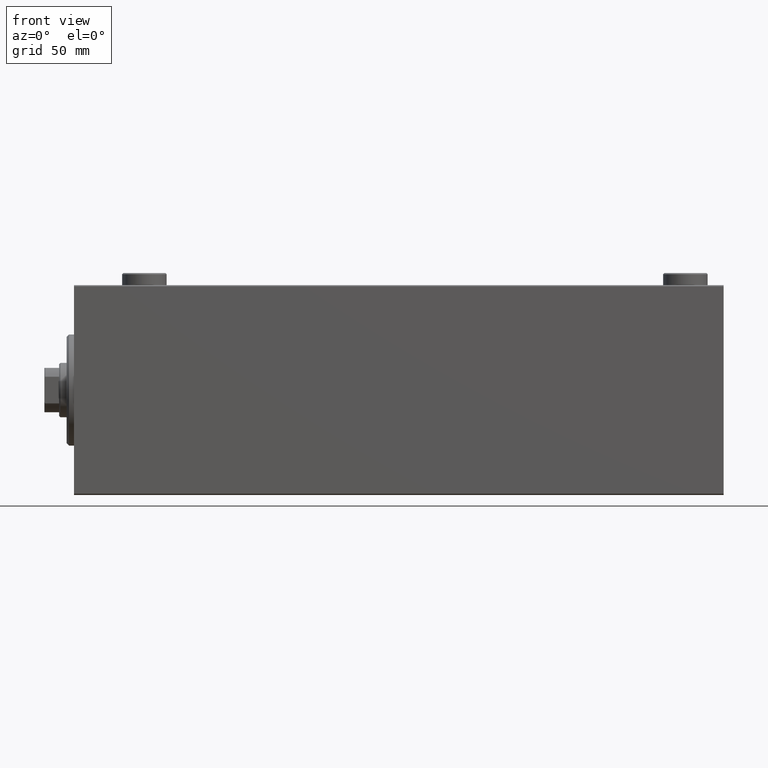
[diagram: clean part render]
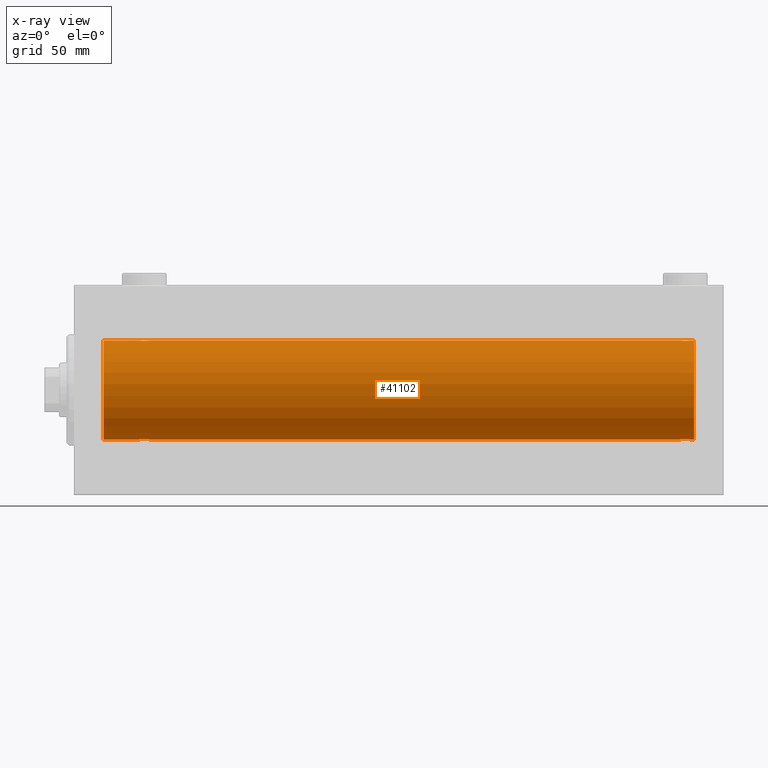
[diagram: x-ray — body ghosted, one internal face saturated and labeled with its STEP entity id]
A machine part, front view, then the same camera in x-ray: the body is ghosted and one INTERNAL B-rep face — a face not visible from any outside direction — is saturated and labeled: STEP entity #41102.
In plain terms, the highlighted cylindrical surface (partial cylindrical patch) has radius 20 mm, axis along (-1, -0, -0).
Its self-contained STEP definition (entity closure, byte-faithful):
#3 = CARTESIAN_POINT ( 'NONE',  ( 248.1434852873303782, -1.898187925611334093, 19.90978194174746463 ) ) ;
#219 = CARTESIAN_POINT ( 'NONE',  ( 249.4467948419180061, -0.5270924491156545599, 19.99450181871975829 ) ) ;
#1143 = CARTESIAN_POINT ( 'NONE',  ( 29.14630673924643744, -1.897222639860594029, -19.90987429971496780 ) ) ;
#1262 = EDGE_CURVE ( 'NONE', #20983, #10361, #3202, .T. ) ;
#1441 = CARTESIAN_POINT ( 'NONE',  ( 29.82096906847290541, -1.507328959728497564, 19.94333197382386302 ) ) ;
#1475 = EDGE_CURVE ( 'NONE', #38331, #9956, #17866, .T. ) ;
#1754 = EDGE_CURVE ( 'NONE', #14636, #9956, #2812, .T. ) ;
#2354 = CARTESIAN_POINT ( 'NONE',  ( 29.14348528733041377, -1.898187925611342086, 19.90978194174746818 ) ) ;
#2456 = CARTESIAN_POINT ( 'NONE',  ( 251.0000000000000000, 0.000000000000000000, 0.000000000000000000 ) ) ;
#2812 = LINE ( 'NONE', #19427, #37708 ) ;
#3033 = CARTESIAN_POINT ( 'NONE',  ( 246.6142092332927120, -1.797933656607944908, -19.91908554465557302 ) ) ;
#3125 = VERTEX_POINT ( 'NONE', #9910 ) ;
#3202 = LINE ( 'NONE', #31083, #28158 ) ;
#3241 = CARTESIAN_POINT ( 'NONE',  ( 246.1769333108052820, -1.505486175075775979, 19.94347168299867690 ) ) ;
#3684 = CARTESIAN_POINT ( 'NONE',  ( 247.3663480385754667, -1.999898234284060772, 19.89975896996866211 ) ) ;
#4162 = CARTESIAN_POINT ( 'NONE',  ( 26.90225308445269903, -1.230936344679278260, -19.96293863536309132 ) ) ;
#4613 = CARTESIAN_POINT ( 'NONE',  ( 27.28194580527848601, -1.591668229360197140, -19.93669678979812332 ) ) ;
#6500 = CARTESIAN_POINT ( 'NONE',  ( 248.3882943720709022, -1.796691196322336870, -19.91919800395357143 ) ) ;
#6502 = CARTESIAN_POINT ( 'NONE',  ( 30.50000000000000000, 2.449293582768389958E-15, -20.00000000000000000 ) ) ;
#6508 = VERTEX_POINT ( 'NONE', #11505 ) ;
#6727 = CARTESIAN_POINT ( 'NONE',  ( 249.4999999999999716, -0.2610801504281894947, -19.99999999999999645 ) ) ;
#7017 = CARTESIAN_POINT ( 'NONE',  ( 245.5000000000000000, -2.194759453252805910E-14, -20.00000000000000000 ) ) ;
#7158 = CARTESIAN_POINT ( 'NONE',  ( 249.2468697630306735, -1.008108445278671050, 19.97602680192585822 ) ) ;
#7200 = ORIENTED_EDGE ( 'NONE', *, *, #33176, .T. ) ;
#7282 = FACE_OUTER_BOUND ( 'NONE', #36131, .T. ) ;
#7379 = CARTESIAN_POINT ( 'NONE',  ( 248.5006721913923400, -1.736582545981374404, 19.92459705242980306 ) ) ;
#7627 = CARTESIAN_POINT ( 'NONE',  ( 28.76358144091416236, -1.986835489085814199, -19.90108393514801222 ) ) ;
#7767 = VERTEX_POINT ( 'NONE', #33770 ) ;
#7849 = CARTESIAN_POINT ( 'NONE',  ( 29.50306556339602437, -1.735203193119894349, -19.92471783160910803 ) ) ;
#8833 = CARTESIAN_POINT ( 'NONE',  ( 26.50000000000001421, -0.2610801504281920482, 20.00000000000000000 ) ) ;
#8876 = CARTESIAN_POINT ( 'NONE',  ( 30.50000000000000000, 2.449293582768389958E-15, -20.00000000000000000 ) ) ;
#9063 = CARTESIAN_POINT ( 'NONE',  ( 26.50000000000000355, -1.552675476701256486E-23, 20.00000000000000000 ) ) ;
#9275 = CARTESIAN_POINT ( 'NONE',  ( 246.8565147126695933, -1.898187925611367399, -19.90978194174746463 ) ) ;
#9288 = CARTESIAN_POINT ( 'NONE',  ( 30.24686976303071617, -1.008108445278694365, 19.97602680192586533 ) ) ;
#9498 = CARTESIAN_POINT ( 'NONE',  ( 247.6336519614245333, -1.999898234284084308, -19.89975896996866211 ) ) ;
#9716 = DIRECTION ( 'NONE',  ( -1.000000000000000000, -0.000000000000000000, -0.000000000000000000 ) ) ;
#9910 = CARTESIAN_POINT ( 'NONE',  ( 26.50000000000000355, -3.809869420541414000E-15, -20.00000000000000000 ) ) ;
#9952 = CARTESIAN_POINT ( 'NONE',  ( 248.7202894579446593, -1.589957321664215328, -19.93683391378736403 ) ) ;
#9956 = VERTEX_POINT ( 'NONE', #32313 ) ;
#10053 = DIRECTION ( 'NONE',  ( 0.000000000000000000, 0.000000000000000000, 1.000000000000000000 ) ) ;
#10161 = CARTESIAN_POINT ( 'NONE',  ( 245.9005847511597267, -1.228758402364239499, 19.96307487248084556 ) ) ;
#10188 = CARTESIAN_POINT ( 'NONE',  ( 30.09941524884030173, -1.228758402364235502, -19.96307487248084911 ) ) ;
#10361 = VERTEX_POINT ( 'NONE', #13576 ) ;
#10418 = CARTESIAN_POINT ( 'NONE',  ( 30.49999999999999645, -0.2610801504281900498, -19.99999999999999645 ) ) ;
#10888 = VECTOR ( 'NONE', #21862, 1000.000000000000000 ) ;
#11505 = CARTESIAN_POINT ( 'NONE',  ( 30.50000000000000000, -1.291560016220422276E-14, 20.00000000000000000 ) ) ;
#11710 = VERTEX_POINT ( 'NONE', #8876 ) ;
#12509 = CARTESIAN_POINT ( 'NONE',  ( 28.76077256031567586, -1.987205673487811186, 19.90104673894211018 ) ) ;
#12605 = DIRECTION ( 'NONE',  ( -1.000000000000000000, 0.000000000000000000, 0.000000000000000000 ) ) ;
#12735 = CARTESIAN_POINT ( 'NONE',  ( 30.09774691554730808, -1.230936344679284034, 19.96293863536309487 ) ) ;
#12917 = CARTESIAN_POINT ( 'NONE',  ( 251.0000000000000000, 2.449293598294706513E-15, -20.00000000000000000 ) ) ;
#12946 = CARTESIAN_POINT ( 'NONE',  ( 245.5532051580820223, -0.5270924491157048530, -19.99450181871975474 ) ) ;
#12991 = EDGE_CURVE ( 'NONE', #14636, #6508, #16779, .T. ) ;
#13406 = CARTESIAN_POINT ( 'NONE',  ( 248.5030655633960350, -1.735203193119904341, -19.92471783160911158 ) ) ;
#13576 = CARTESIAN_POINT ( 'NONE',  ( 249.5000000000000000, 6.344962748519499734E-15, 20.00000000000000000 ) ) ;
#13636 = CARTESIAN_POINT ( 'NONE',  ( 245.5000000000000000, -2.194759453252805910E-14, -20.00000000000000000 ) ) ;
#13841 = CARTESIAN_POINT ( 'NONE',  ( 249.5000000000000568, -0.2644051013331001898, 20.00000000000000355 ) ) ;
#14038 = ORIENTED_EDGE ( 'NONE', *, *, #36027, .T. ) ;
#14636 = VERTEX_POINT ( 'NONE', #33551 ) ;
#14757 = CARTESIAN_POINT ( 'NONE',  ( 27.85651471266959334, -1.898187925611338533, -19.90978194174746818 ) ) ;
#14772 = VERTEX_POINT ( 'NONE', #45069 ) ;
#14791 = ORIENTED_EDGE ( 'NONE', *, *, #25543, .F. ) ;
#14983 = ORIENTED_EDGE ( 'NONE', *, *, #28711, .F. ) ;
#15206 = CARTESIAN_POINT ( 'NONE',  ( 28.36941128289166159, -2.000100592782553921, -19.89973863218036598 ) ) ;
#16144 = CARTESIAN_POINT ( 'NONE',  ( 12.00000000000001066, 2.449293598294706513E-15, -20.00000000000000000 ) ) ;
#16231 = EDGE_CURVE ( 'NONE', #11710, #3125, #20646, .T. ) ;
#16414 = CARTESIAN_POINT ( 'NONE',  ( 249.5000000000000000, 2.449293582762473501E-15, -20.00000000000000000 ) ) ;
#16428 = CARTESIAN_POINT ( 'NONE',  ( 29.50067219139244301, -1.736582545981379511, 19.92459705242981371 ) ) ;
#16516 = ORIENTED_EDGE ( 'NONE', *, *, #12991, .T. ) ;
#16779 = B_SPLINE_CURVE_WITH_KNOTS ( 'NONE', 3,
 ( #9063, #8833, #43616, #33706, #30025, #26579, #22663, #26802, #19209, #33247, #22889, #44311, #33933, #40839, #12509, #40614, #2354, #23119, #16428, #29794, #1441, #12735, #9288, #23349, #36924, #44532 ),
 .UNSPECIFIED., .F., .F.,
 ( 4, 2, 2, 2, 2, 2, 2, 2, 2, 2, 2, 2, 4 ),
 ( 0.006256819553329746875, 0.007038738568778710007, 0.007820657584227673140, 0.008211617091952151670, 0.008602576599676628466, 0.008993536107401105262, 0.009384495615125583792, 0.009775455122850062323, 0.01016641463057453912, 0.01055737413829901591, 0.01094833364602349271, 0.01173025266147244804, 0.01251217167692140336 ),
 .UNSPECIFIED. ) ;
#16831 = LINE ( 'NONE', #17057, #44955 ) ;
#16833 = CARTESIAN_POINT ( 'NONE',  ( 251.0000000000000000, 0.000000000000000000, 20.00000000000000000 ) ) ;
#16954 = B_SPLINE_CURVE_WITH_KNOTS ( 'NONE', 3,
 ( #16414, #6727, #38285, #19878, #27695, #20568, #9952, #13406, #6500, #20336, #38053, #34602, #9498, #20797, #27012, #45433, #9275, #3033, #33915, #30692, #30457, #17098, #44515, #12946, #31148, #13636 ),
 .UNSPECIFIED., .F., .F.,
 ( 4, 2, 2, 2, 2, 2, 2, 2, 2, 2, 2, 2, 4 ),
 ( 0.006256819553329811927, 0.007038738568778726487, 0.007820657584227641915, 0.008211617091952127384, 0.008602576599676614588, 0.008993536107401101792, 0.009384495615125588996, 0.009775455122850074466, 0.01016641463057456167, 0.01055737413829904714, 0.01094833364602353434, 0.01173025266147256600, 0.01251217167692159765 ),
 .UNSPECIFIED. ) ;
#17057 = CARTESIAN_POINT ( 'NONE',  ( 251.0000000000000000, 2.449293598294706513E-15, -20.00000000000000000 ) ) ;
#17098 = CARTESIAN_POINT ( 'NONE',  ( 245.9022530844527239, -1.230936344679302907, -19.96293863536308422 ) ) ;
#17219 = DIRECTION ( 'NONE',  ( 0.000000000000000000, 0.000000000000000000, 1.000000000000000000 ) ) ;
#17299 = CARTESIAN_POINT ( 'NONE',  ( 248.7180541947215318, -1.591668229360197806, 19.93669678979812687 ) ) ;
#17655 = CYLINDRICAL_SURFACE ( 'NONE', #32442, 20.00000000000000000 ) ;
#17866 = CIRCLE ( 'NONE', #38449, 20.00000000000000000 ) ;
#18035 = ORIENTED_EDGE ( 'NONE', *, *, #1262, .F. ) ;
#19209 = CARTESIAN_POINT ( 'NONE',  ( 27.61170562792909422, -1.796691196322318218, 19.91919800395357498 ) ) ;
#19427 = CARTESIAN_POINT ( 'NONE',  ( 251.0000000000000000, 0.000000000000000000, 20.00000000000000000 ) ) ;
#19878 = CARTESIAN_POINT ( 'NONE',  ( 249.2482591346001755, -1.005710574260850532, -19.97614991974274190 ) ) ;
#20336 = CARTESIAN_POINT ( 'NONE',  ( 248.1463067392464552, -1.897222639860616233, -19.90987429971496070 ) ) ;
#20568 = CARTESIAN_POINT ( 'NONE',  ( 248.8230666891946612, -1.505486175075778199, -19.94347168299867690 ) ) ;
#20646 = B_SPLINE_CURVE_WITH_KNOTS ( 'NONE', 3,
 ( #6502, #10418, #41744, #38055, #10188, #24251, #38288, #7849, #36165, #1143, #39855, #7627, #29036, #15206, #32489, #22137, #14757, #23220, #29263, #4613, #40713, #4162, #21906, #43317, #32951, #32720 ),
 .UNSPECIFIED., .F., .F.,
 ( 4, 2, 2, 2, 2, 2, 2, 2, 2, 2, 2, 2, 4 ),
 ( 0.006256819553329842284, 0.007038738568778818427, 0.007820657584227792836, 0.008211617091952278305, 0.008602576599676762040, 0.008993536107401245774, 0.009384495615125729509, 0.009775455122850213244, 0.01016641463057469871, 0.01055737413829918071, 0.01094833364602366618, 0.01173025266147263365, 0.01251217167692159939 ),
 .UNSPECIFIED. ) ;
#20797 = CARTESIAN_POINT ( 'NONE',  ( 247.3694112828916047, -2.000100592782575237, -19.89973863218036243 ) ) ;
#20983 = VERTEX_POINT ( 'NONE', #16833 ) ;
#20998 = CARTESIAN_POINT ( 'NONE',  ( 247.6305887171083668, -2.000100592782551701, 19.89973863218036598 ) ) ;
#21862 = DIRECTION ( 'NONE',  ( -1.000000000000000000, -0.000000000000000000, -0.000000000000000000 ) ) ;
#21906 = CARTESIAN_POINT ( 'NONE',  ( 26.75313023696928738, -1.008108445278687704, -19.97602680192586533 ) ) ;
#21949 = ORIENTED_EDGE ( 'NONE', *, *, #1754, .F. ) ;
#22137 = CARTESIAN_POINT ( 'NONE',  ( 27.98351467081095123, -1.936551476643005198, -19.90603968831098314 ) ) ;
#22663 = CARTESIAN_POINT ( 'NONE',  ( 27.27971054205536205, -1.589957321664209333, 19.93683391378736047 ) ) ;
#22889 = CARTESIAN_POINT ( 'NONE',  ( 27.98076487864722495, -1.935816449315125309, 19.90611141657401717 ) ) ;
#23119 = CARTESIAN_POINT ( 'NONE',  ( 29.38579076670728085, -1.797933656607921593, 19.91908554465558367 ) ) ;
#23220 = CARTESIAN_POINT ( 'NONE',  ( 27.61420923329272981, -1.797933656607917596, -19.91908554465558367 ) ) ;
#23349 = CARTESIAN_POINT ( 'NONE',  ( 30.44679484191797769, -0.5270924491156789848, 19.99450181871975829 ) ) ;
#24226 = CARTESIAN_POINT ( 'NONE',  ( 247.2364185590857915, -1.986835489085816198, 19.90108393514801222 ) ) ;
#24251 = CARTESIAN_POINT ( 'NONE',  ( 29.82306668919470383, -1.505486175075772870, -19.94347168299867334 ) ) ;
#24451 = CARTESIAN_POINT ( 'NONE',  ( 246.6117056279290694, -1.796691196322314443, 19.91919800395357143 ) ) ;
#24672 = CARTESIAN_POINT ( 'NONE',  ( 246.2797105420554260, -1.589957321664211998, 19.93683391378736403 ) ) ;
#24895 = CARTESIAN_POINT ( 'NONE',  ( 248.8209690684728628, -1.507328959728491347, 19.94333197382385592 ) ) ;
#25543 = EDGE_CURVE ( 'NONE', #7767, #6508, #38505, .T. ) ;
#25550 = VECTOR ( 'NONE', #9716, 1000.000000000000000 ) ;
#26224 = DIRECTION ( 'NONE',  ( 0.000000000000000000, 0.000000000000000000, 1.000000000000000000 ) ) ;
#26579 = CARTESIAN_POINT ( 'NONE',  ( 27.17693331080529617, -1.505486175075771760, 19.94347168299866979 ) ) ;
#26802 = CARTESIAN_POINT ( 'NONE',  ( 27.49693443660397563, -1.735203193119895015, 19.92471783160911158 ) ) ;
#27012 = CARTESIAN_POINT ( 'NONE',  ( 247.2392274396843277, -1.987205673487832502, -19.90104673894210308 ) ) ;
#27153 = EDGE_CURVE ( 'NONE', #3125, #38331, #28100, .T. ) ;
#27342 = DIRECTION ( 'NONE',  ( -1.000000000000000000, -0.000000000000000000, -0.000000000000000000 ) ) ;
#27695 = CARTESIAN_POINT ( 'NONE',  ( 249.0994152488403870, -1.228758402364237279, -19.96307487248085266 ) ) ;
#28100 = LINE ( 'NONE', #42154, #10888 ) ;
#28120 = CARTESIAN_POINT ( 'NONE',  ( 249.0977469155472477, -1.230936344679278704, 19.96293863536309132 ) ) ;
#28158 = VECTOR ( 'NONE', #38454, 1000.000000000000000 ) ;
#28339 = CARTESIAN_POINT ( 'NONE',  ( 246.8536932607535732, -1.897222639860593363, 19.90987429971496780 ) ) ;
#28458 = VERTEX_POINT ( 'NONE', #12917 ) ;
#28711 = EDGE_CURVE ( 'NONE', #28458, #20983, #41100, .T. ) ;
#29036 = CARTESIAN_POINT ( 'NONE',  ( 28.63365196142448355, -1.999898234284062992, -19.89975896996866211 ) ) ;
#29263 = CARTESIAN_POINT ( 'NONE',  ( 27.49932780860757475, -1.736582545981376180, -19.92459705242981371 ) ) ;
#29730 = ORIENTED_EDGE ( 'NONE', *, *, #1475, .T. ) ;
#29794 = CARTESIAN_POINT ( 'NONE',  ( 29.71805419472150689, -1.591668229360200915, 19.93669678979812687 ) ) ;
#30025 = CARTESIAN_POINT ( 'NONE',  ( 26.90058475115969827, -1.228758402364235058, 19.96307487248084911 ) ) ;
#30092 = VERTEX_POINT ( 'NONE', #7017 ) ;
#30268 = EDGE_CURVE ( 'NONE', #14772, #30092, #16954, .T. ) ;
#30457 = CARTESIAN_POINT ( 'NONE',  ( 246.1790309315271088, -1.507328959728516438, -19.94333197382385592 ) ) ;
#30692 = CARTESIAN_POINT ( 'NONE',  ( 246.2819458052784967, -1.591668229360221565, -19.93669678979811977 ) ) ;
#30874 = ORIENTED_EDGE ( 'NONE', *, *, #39266, .T. ) ;
#31083 = CARTESIAN_POINT ( 'NONE',  ( 251.0000000000000000, 0.000000000000000000, 20.00000000000000000 ) ) ;
#31112 = DIRECTION ( 'NONE',  ( -1.000000000000000000, -0.000000000000000000, -0.000000000000000000 ) ) ;
#31148 = CARTESIAN_POINT ( 'NONE',  ( 245.5000000000000284, -0.2644051013331287225, -20.00000000000000000 ) ) ;
#31701 = CARTESIAN_POINT ( 'NONE',  ( 251.0000000000000000, 0.000000000000000000, 0.000000000000000000 ) ) ;
#31795 = CARTESIAN_POINT ( 'NONE',  ( 247.7607725603156439, -1.987205673487804747, 19.90104673894209952 ) ) ;
#32015 = CARTESIAN_POINT ( 'NONE',  ( 246.9807648786472782, -1.935816449315131527, 19.90611141657401717 ) ) ;
#32259 = AXIS2_PLACEMENT_3D ( 'NONE', #2456, #41398, #17219 ) ;
#32313 = CARTESIAN_POINT ( 'NONE',  ( 12.00000000000001066, 0.000000000000000000, 20.00000000000000000 ) ) ;
#32442 = AXIS2_PLACEMENT_3D ( 'NONE', #31701, #35153, #10053 ) ;
#32489 = CARTESIAN_POINT ( 'NONE',  ( 28.23922743968432059, -1.987205673487808966, -19.90104673894211018 ) ) ;
#32720 = CARTESIAN_POINT ( 'NONE',  ( 26.50000000000000355, -3.809869420541414000E-15, -20.00000000000000000 ) ) ;
#32951 = CARTESIAN_POINT ( 'NONE',  ( 26.50000000000001066, -0.2644051013331030209, -20.00000000000000355 ) ) ;
#33176 = EDGE_CURVE ( 'NONE', #28458, #14772, #37923, .T. ) ;
#33247 = CARTESIAN_POINT ( 'NONE',  ( 27.85369326075355190, -1.897222639860595139, 19.90987429971497136 ) ) ;
#33464 = DIRECTION ( 'NONE',  ( -1.000000000000000000, -0.000000000000000000, -0.000000000000000000 ) ) ;
#33551 = CARTESIAN_POINT ( 'NONE',  ( 26.50000000000000355, -1.552675476701256486E-23, 20.00000000000000000 ) ) ;
#33706 = CARTESIAN_POINT ( 'NONE',  ( 26.75174086539980678, -1.005710574260839874, 19.97614991974273835 ) ) ;
#33770 = CARTESIAN_POINT ( 'NONE',  ( 245.5000000000000000, -1.553188236289650144E-23, 20.00000000000000000 ) ) ;
#33915 = CARTESIAN_POINT ( 'NONE',  ( 246.4993278086076316, -1.736582545981399939, -19.92459705242980306 ) ) ;
#33933 = CARTESIAN_POINT ( 'NONE',  ( 28.36634803857550580, -1.999898234284063436, 19.89975896996865856 ) ) ;
#34240 = CARTESIAN_POINT ( 'NONE',  ( 251.0000000000000000, 2.449293598294706513E-15, -20.00000000000000000 ) ) ;
#34602 = CARTESIAN_POINT ( 'NONE',  ( 247.7635814409141517, -1.986835489085835738, -19.90108393514801577 ) ) ;
#34798 = CARTESIAN_POINT ( 'NONE',  ( 245.5000000000000000, -1.553188236289650144E-23, 20.00000000000000000 ) ) ;
#35027 = CARTESIAN_POINT ( 'NONE',  ( 245.7517408653997393, -1.005710574260841650, 19.97614991974273835 ) ) ;
#35153 = DIRECTION ( 'NONE',  ( -1.000000000000000000, -0.000000000000000000, -0.000000000000000000 ) ) ;
#36027 = EDGE_CURVE ( 'NONE', #7767, #10361, #37762, .T. ) ;
#36131 = EDGE_LOOP ( 'NONE', ( #14983, #7200, #42691, #30874, #44170, #42159, #29730, #21949, #16516, #14791, #14038, #18035 ) ) ;
#36165 = CARTESIAN_POINT ( 'NONE',  ( 29.38829437207091999, -1.796691196322316664, -19.91919800395357143 ) ) ;
#36924 = CARTESIAN_POINT ( 'NONE',  ( 30.49999999999994671, -0.2644051013330911970, 19.99999999999999645 ) ) ;
#37023 = CARTESIAN_POINT ( 'NONE',  ( 12.00000000000001066, 0.000000000000000000, 0.000000000000000000 ) ) ;
#37708 = VECTOR ( 'NONE', #33464, 1000.000000000000000 ) ;
#37762 = B_SPLINE_CURVE_WITH_KNOTS ( 'NONE', 3,
 ( #34798, #42173, #41715, #35027, #10161, #3241, #24672, #38709, #24451, #28339, #32015, #24226, #3684, #20998, #31795, #42392, #3, #41950, #7379, #17299, #24895, #28120, #7158, #219, #13841, #38257 ),
 .UNSPECIFIED., .F., .F.,
 ( 4, 2, 2, 2, 2, 2, 2, 2, 2, 2, 2, 2, 4 ),
 ( 0.006256819553329837080, 0.007038738568778794141, 0.007820657584227751202, 0.008211617091952229733, 0.008602576599676708263, 0.008993536107401185059, 0.009384495615125663590, 0.009775455122850142120, 0.01016641463057462239, 0.01055737413829909918, 0.01094833364602357945, 0.01173025266147259202, 0.01251217167692160633 ),
 .UNSPECIFIED. ) ;
#37813 = CARTESIAN_POINT ( 'NONE',  ( 251.0000000000000000, 0.000000000000000000, 20.00000000000000000 ) ) ;
#37923 = LINE ( 'NONE', #34240, #38146 ) ;
#38053 = CARTESIAN_POINT ( 'NONE',  ( 248.0192351213527786, -1.935816449315146626, -19.90611141657401362 ) ) ;
#38055 = CARTESIAN_POINT ( 'NONE',  ( 30.24825913460018612, -1.005710574260838985, -19.97614991974274190 ) ) ;
#38146 = VECTOR ( 'NONE', #27342, 1000.000000000000000 ) ;
#38257 = CARTESIAN_POINT ( 'NONE',  ( 249.5000000000000000, 6.344962748519499734E-15, 20.00000000000000000 ) ) ;
#38285 = CARTESIAN_POINT ( 'NONE',  ( 249.4475506288250983, -0.5243189001515076164, -19.99457699142850586 ) ) ;
#38288 = CARTESIAN_POINT ( 'NONE',  ( 29.72028945794465571, -1.589957321664208223, -19.93683391378736047 ) ) ;
#38331 = VERTEX_POINT ( 'NONE', #16144 ) ;
#38449 = AXIS2_PLACEMENT_3D ( 'NONE', #37023, #12605, #26224 ) ;
#38454 = DIRECTION ( 'NONE',  ( -1.000000000000000000, -0.000000000000000000, -0.000000000000000000 ) ) ;
#38505 = LINE ( 'NONE', #37813, #25550 ) ;
#38709 = CARTESIAN_POINT ( 'NONE',  ( 246.4969344366040502, -1.735203193119897236, 19.92471783160911514 ) ) ;
#39266 = EDGE_CURVE ( 'NONE', #30092, #11710, #16831, .T. ) ;
#39855 = CARTESIAN_POINT ( 'NONE',  ( 29.01923512135276795, -1.935816449315124643, -19.90611141657401717 ) ) ;
#40614 = CARTESIAN_POINT ( 'NONE',  ( 29.01648532918904522, -1.936551476643008529, 19.90603968831098314 ) ) ;
#40713 = CARTESIAN_POINT ( 'NONE',  ( 27.17903093152710525, -1.507328959728492457, -19.94333197382385592 ) ) ;
#40839 = CARTESIAN_POINT ( 'NONE',  ( 28.63058871710834907, -2.000100592782554365, 19.89973863218036598 ) ) ;
#41100 = CIRCLE ( 'NONE', #32259, 20.00000000000000000 ) ;
#41102 = ADVANCED_FACE ( 'NONE', ( #7282 ), #17655, .F. ) ;
#41398 = DIRECTION ( 'NONE',  ( -1.000000000000000000, 0.000000000000000000, 0.000000000000000000 ) ) ;
#41715 = CARTESIAN_POINT ( 'NONE',  ( 245.5524493711749301, -0.5243189001515013992, 19.99457699142850231 ) ) ;
#41744 = CARTESIAN_POINT ( 'NONE',  ( 30.44755062882508412, -0.5243189001514996228, -19.99457699142849876 ) ) ;
#41950 = CARTESIAN_POINT ( 'NONE',  ( 248.3857907667072595, -1.797933656607912489, 19.91908554465557657 ) ) ;
#42154 = CARTESIAN_POINT ( 'NONE',  ( 251.0000000000000000, 2.449293598294706513E-15, -20.00000000000000000 ) ) ;
#42159 = ORIENTED_EDGE ( 'NONE', *, *, #27153, .T. ) ;
#42173 = CARTESIAN_POINT ( 'NONE',  ( 245.4999999999999716, -0.2610801504281912711, 19.99999999999999645 ) ) ;
#42392 = CARTESIAN_POINT ( 'NONE',  ( 248.0164853291890950, -1.936551476642997649, 19.90603968831098669 ) ) ;
#42691 = ORIENTED_EDGE ( 'NONE', *, *, #30268, .T. ) ;
#43317 = CARTESIAN_POINT ( 'NONE',  ( 26.55320515808203297, -0.5270924491156698810, -19.99450181871976184 ) ) ;
#43616 = CARTESIAN_POINT ( 'NONE',  ( 26.55244937117491943, -0.5243189001515015102, 19.99457699142850231 ) ) ;
#44170 = ORIENTED_EDGE ( 'NONE', *, *, #16231, .T. ) ;
#44311 = CARTESIAN_POINT ( 'NONE',  ( 28.23641855908583764, -1.986835489085813755, 19.90108393514800866 ) ) ;
#44515 = CARTESIAN_POINT ( 'NONE',  ( 245.7531302369692980, -1.008108445278719900, -19.97602680192585822 ) ) ;
#44532 = CARTESIAN_POINT ( 'NONE',  ( 30.50000000000000000, -1.291560016220422276E-14, 20.00000000000000000 ) ) ;
#44955 = VECTOR ( 'NONE', #31112, 1000.000000000000000 ) ;
#45069 = CARTESIAN_POINT ( 'NONE',  ( 249.5000000000000000, 2.449293582762473501E-15, -20.00000000000000000 ) ) ;
#45433 = CARTESIAN_POINT ( 'NONE',  ( 246.9835146708110187, -1.936551476643029401, -19.90603968831098314 ) ) ;